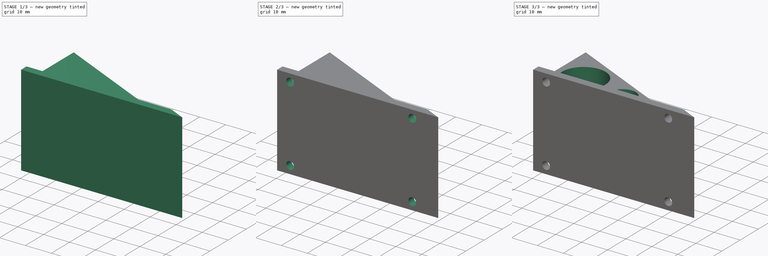
[diagram: build sequence overview — one tinted view per stage of 3, left to right]
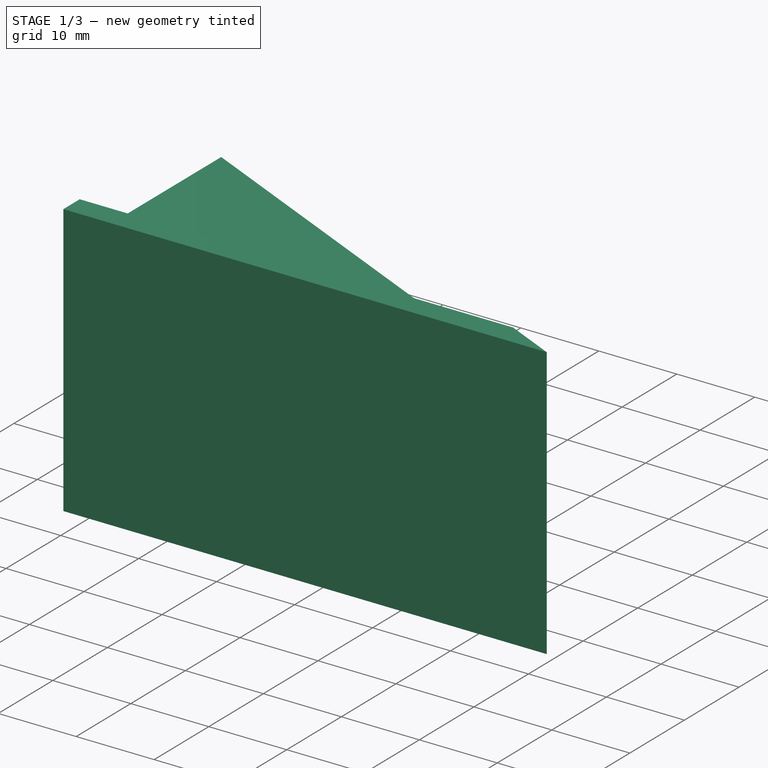
[diagram: stage 1 of 3 — iso view after this stage's code; geometry added in this stage tinted green]
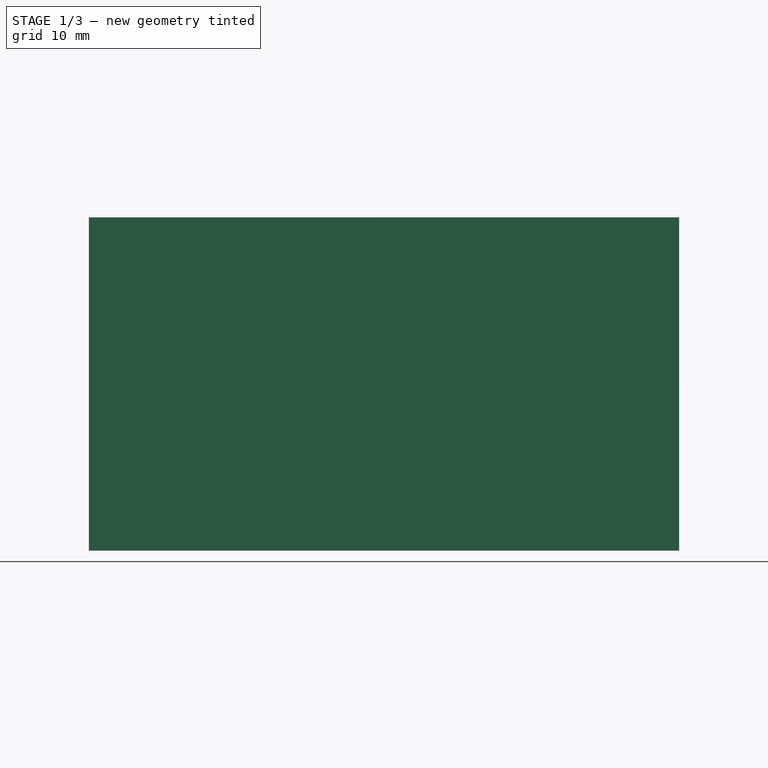
[diagram: stage 1 of 3 — front view after this stage's code; geometry added in this stage tinted green]
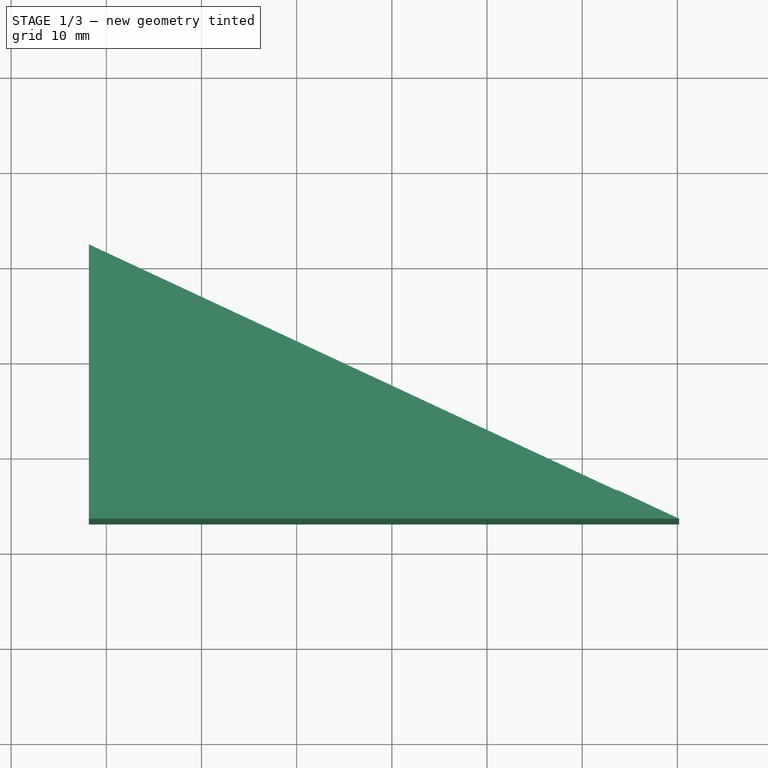
[diagram: stage 1 of 3 — top view after this stage's code; geometry added in this stage tinted green]
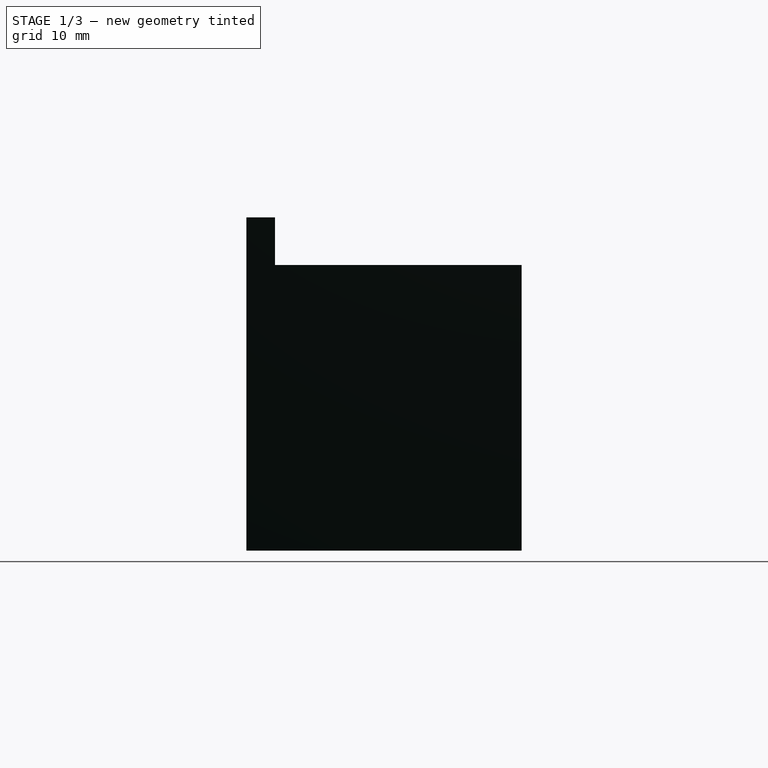
[diagram: stage 1 of 3 — right view after this stage's code; geometry added in this stage tinted green]
FCSTD DOCUMENT  (FreeCAD 0.16R6705 (Git))
Label: pippo2
License: All rights reserved
LicenseURL: http://it.wikipedia.org/wiki/<copyright redacted>
objects: Sketcher::SketchObject×5, PartDesign::Pocket×4, PartDesign::Pad×1, PartDesign::Fillet×1
note: 16 computed .brp shape members not serialized (recipe doc carries the construction recipe); baked Part::Feature solids carry a one-line shape summary decoded from their .brp

FEATURE [Sketcher::SketchObject] Sketch
  sketch-geometry (3):
    g0: LineSegment StartX=-1.82481 StartY=2.01752 StartZ=0 EndX=-1.82481 EndY=-26.8936 EndZ=0
    g1: LineSegment StartX=-1.82481 StartY=-26.8936 StartZ=0 EndX=60.1752 EndY=-26.8936 EndZ=0
    g2: LineSegment StartX=60.1752 StartY=-26.8936 StartZ=0 EndX=-1.82481 EndY=2.01752 EndZ=0
  constraints (7):
    c: Coincident(g0,g1)
    c: Coincident(g1,g2)
    c: Coincident(g2,g0)
    c: Perpendicular(g1,g0)
    c: Parallel(g1,g-1)
    c: Angle(g2,g1) = 0.436332
    c: Distance(g1) = 62
FEATURE [PartDesign::Pad] Pad
  Length = 35
  Length2 = 100
  Midplane = true
  Sketch = -> Sketch
  Type = 0
FEATURE [Sketcher::SketchObject] Sketch001
  ExternalGeometry = -> [Pad]
  Placement = pos=(0,0,17.5) rot=(0,0,1;0rad)
  Support = -> Pad [Face5]
  sketch-geometry (3):
    g0: LineSegment StartX=-1.82481 StartY=2.01752 StartZ=0 EndX=-1.82481 EndY=-23.8936 EndZ=0
    g1: LineSegment StartX=-1.82481 StartY=-23.8936 StartZ=0 EndX=53.7417 EndY=-23.8936 EndZ=0
    g2: LineSegment StartX=53.7417 StartY=-23.8936 StartZ=0 EndX=-1.82481 EndY=2.01752 EndZ=0
  constraints (9):
    c: Coincident(g0,g1)
    c: Coincident(g1,g2)
    c: Coincident(g2,g0)
    c: Parallel(g1,g-3)
    c: Parallel(g0,g-4)
    c: PointOnObject(g1,g-5)
    c: PointOnObject(g0,g-4)
    c: DistanceY(g-4,g0) = 3
    c: PointOnObject(g0,g-5)
FEATURE [PartDesign::Pocket] Pocket
  Length = 5
  Sketch = -> Sketch001
  Type = 0
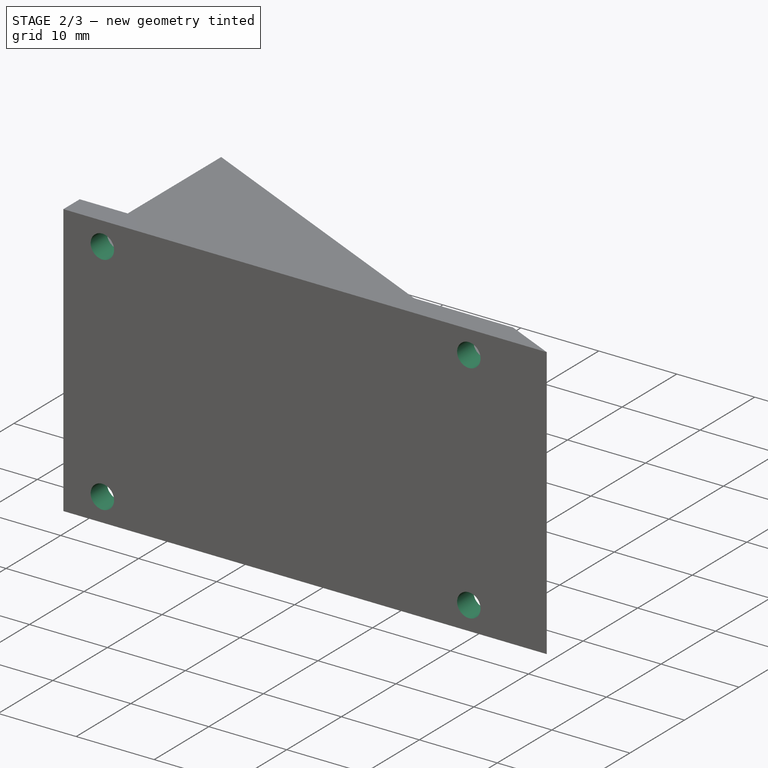
[diagram: stage 2 of 3 — iso view after this stage's code; geometry added in this stage tinted green]
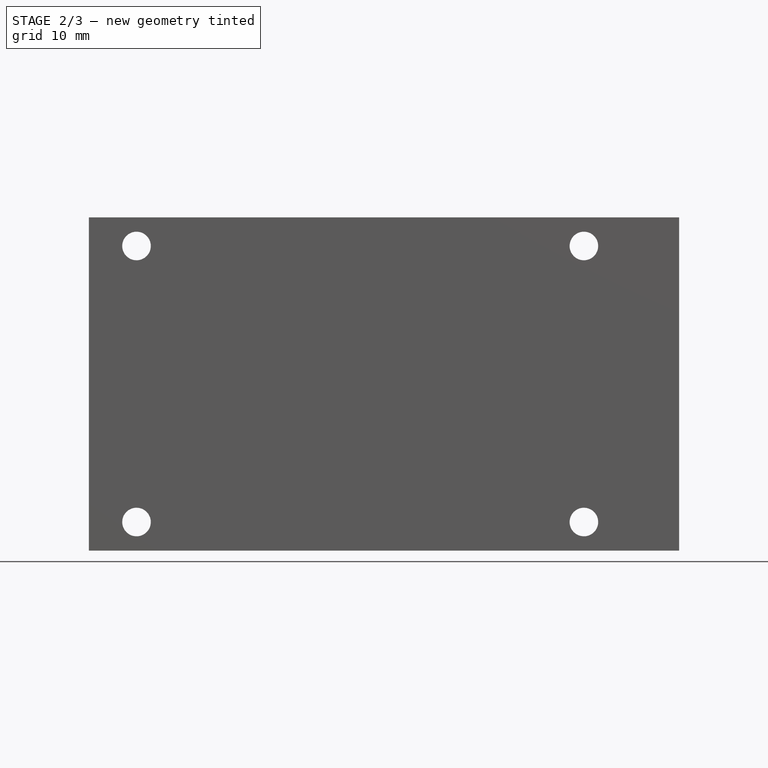
[diagram: stage 2 of 3 — front view after this stage's code; geometry added in this stage tinted green]
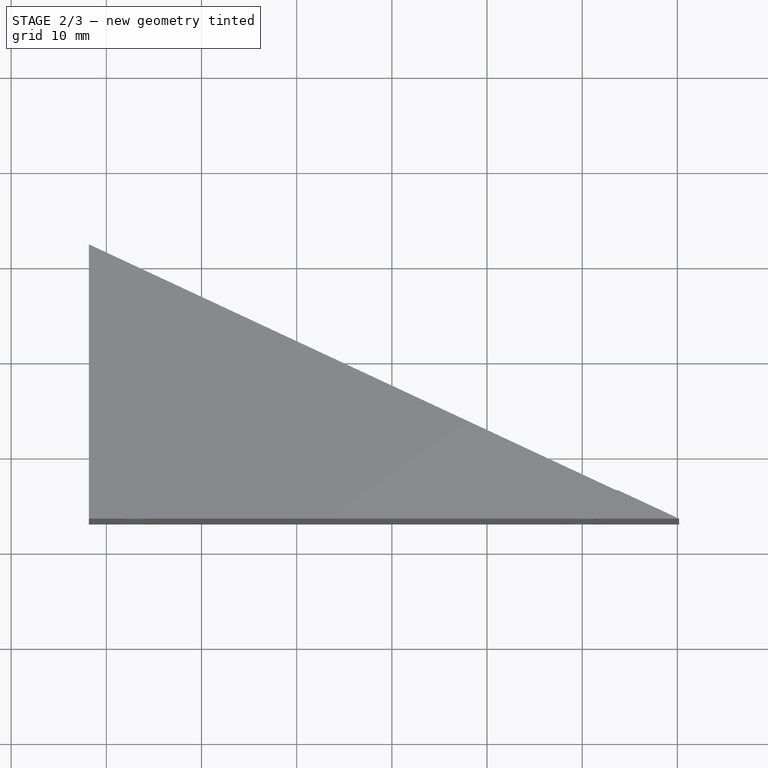
[diagram: stage 2 of 3 — top view after this stage's code; geometry added in this stage tinted green]
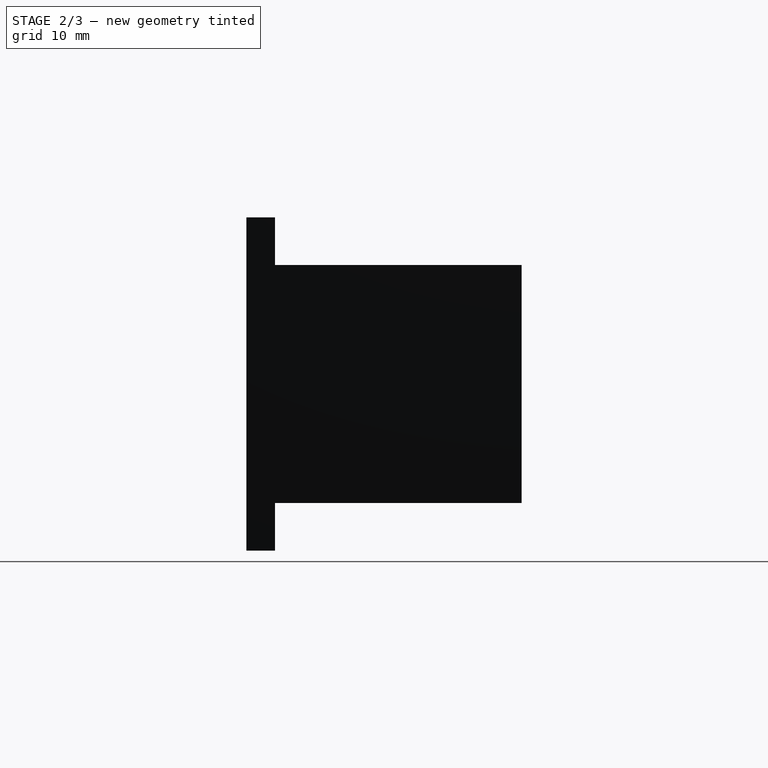
[diagram: stage 2 of 3 — right view after this stage's code; geometry added in this stage tinted green]
FEATURE [Sketcher::SketchObject] Sketch002
  ExternalGeometry = -> [Pocket]
  Placement = pos=(0,0,-17.5) rot=(1,0,0;3.14159rad)
  Support = -> Pocket [Face2]
  sketch-geometry (3):
    g0: LineSegment StartX=53.7417 StartY=23.8936 StartZ=0 EndX=-1.82481 EndY=23.8936 EndZ=0
    g1: LineSegment StartX=53.7417 StartY=23.8936 StartZ=0 EndX=-1.82481 EndY=-2.01752 EndZ=0
    g2: LineSegment StartX=-1.82481 StartY=23.8936 StartZ=0 EndX=-1.82481 EndY=-2.01752 EndZ=0
  constraints (6):
    c: Coincident(g2,g-5)
    c: Coincident(g1,g-4)
    c: Coincident(g-5,g0)
    c: Coincident(g-5,g1)
    c: Coincident(g2,g0)
    c: Coincident(g1,g2)
FEATURE [PartDesign::Pocket] Pocket001
  Length = 5
  Sketch = -> Sketch002
  Type = 0
FEATURE [Sketcher::SketchObject] Sketch003
  ExternalGeometry = -> [Pocket001]
  Placement = pos=(0,-23.8936,0) rot=(0,0.707107,0.707107;3.14159rad)
  Support = -> Pocket001 [Face5]
  sketch-geometry (8):
    g0: Circle CenterX=-50.1752 CenterY=14.5 CenterZ=0 NormalX=0 NormalY=0 NormalZ=1 Radius=1.5
    g1: Circle CenterX=-3.17519 CenterY=14.5 CenterZ=0 NormalX=0 NormalY=0 NormalZ=1 Radius=1.5
    g2: Circle CenterX=-50.1752 CenterY=-14.5 CenterZ=0 NormalX=0 NormalY=0 NormalZ=1 Radius=1.5
    g3: Circle CenterX=-3.17519 CenterY=-14.5 CenterZ=0 NormalX=0 NormalY=0 NormalZ=1 Radius=1.5
    g4: LineSegment [constr] StartX=-70.6322 StartY=14.5 StartZ=0 EndX=-8.17519 EndY=14.5 EndZ=0
    g5: LineSegment [constr] StartX=-8.17519 StartY=14.5 StartZ=0 EndX=-8.17519 EndY=-14.5 EndZ=0
    g6: LineSegment [constr] StartX=-8.17519 StartY=-14.5 StartZ=0 EndX=-70.6322 EndY=-14.5 EndZ=0
    g7: LineSegment [constr] StartX=-70.6322 StartY=-31 StartZ=0 EndX=-70.6322 EndY=31 EndZ=0
  constraints (16):
    c: Equal(g0,g1)
    c: Equal(g1,g3)
    c: Equal(g3,g2)
    c: DistanceX(g1,g-3) = 5
    c: DistanceX(g3,g-4) = 5
    c: Coincident(g4,g5)
    c: Coincident(g5,g6)
    c: Horizontal(g4)
    c: Horizontal(g6)
    c: DistanceY(g1,g-3) = 3
    c: DistanceY(g-4,g3) = 3
    c: Radius(g0) = 1.5
    c: DistanceX(g0,g-3) = 52
    c: DistanceX(g2,g-4) = 52
    c: PointOnObject(g0,g4)
    c: PointOnObject(g2,g6)
FEATURE [PartDesign::Pocket] Pocket002
  Length = 5
  Sketch = -> Sketch003
  Type = 1
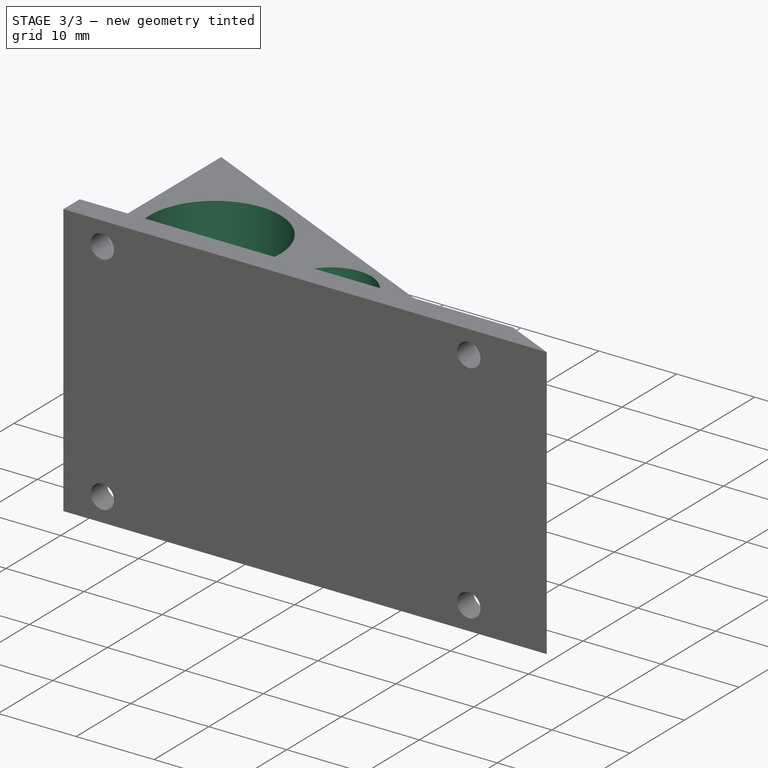
[diagram: stage 3 of 3 — iso view after this stage's code; geometry added in this stage tinted green]
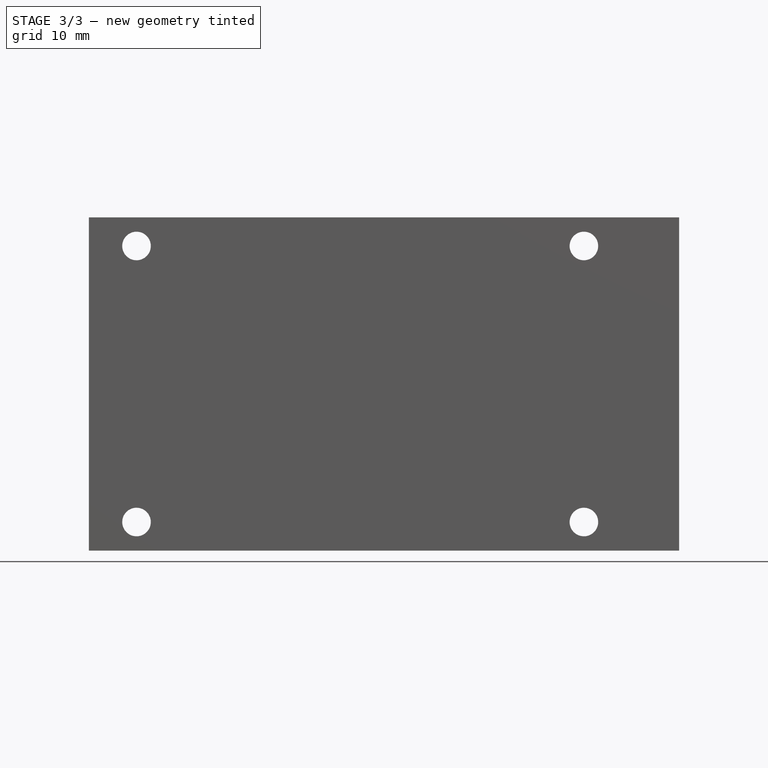
[diagram: stage 3 of 3 — front view after this stage's code; geometry added in this stage tinted green]
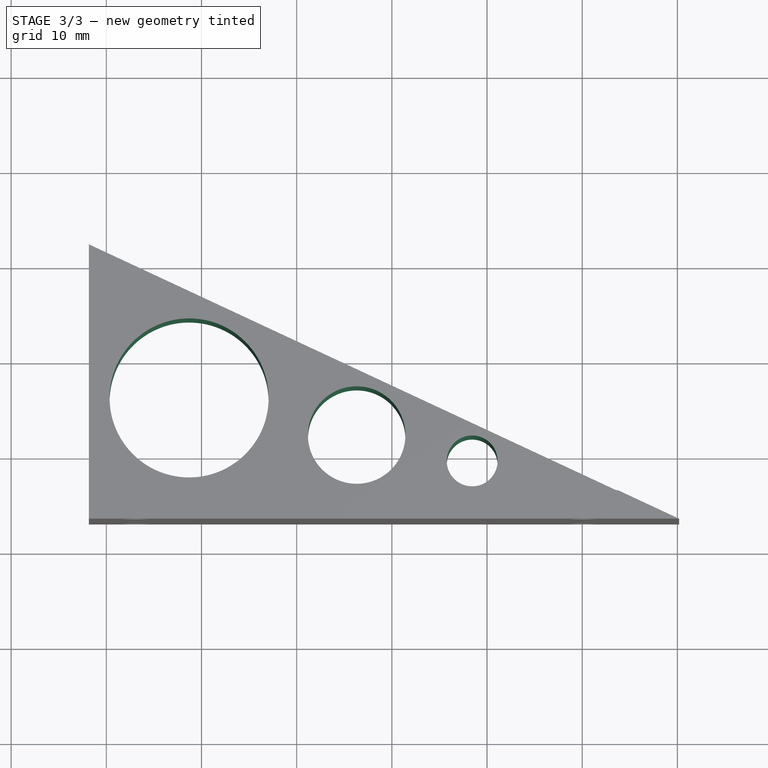
[diagram: stage 3 of 3 — top view after this stage's code; geometry added in this stage tinted green]
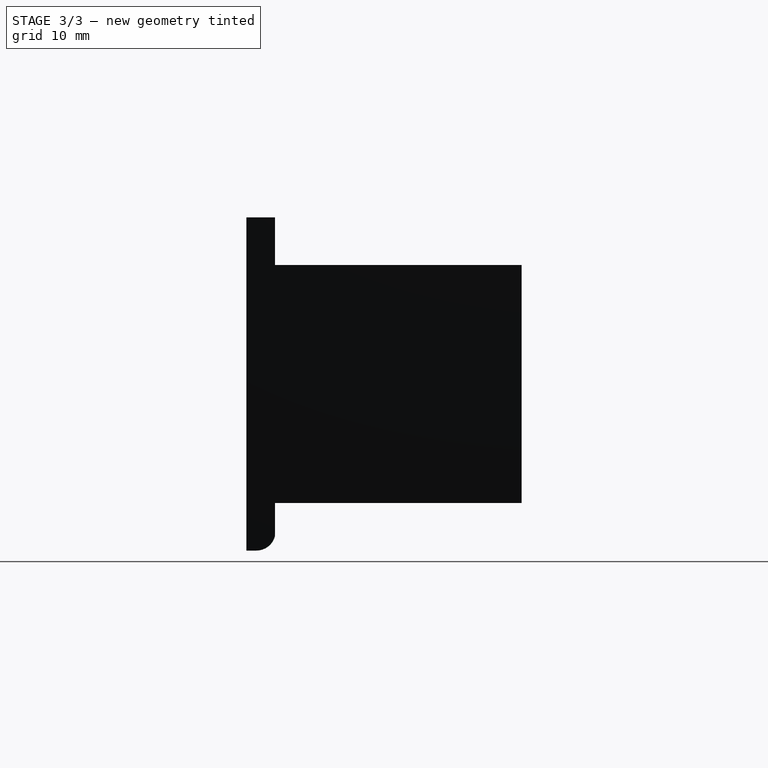
[diagram: stage 3 of 3 — right view after this stage's code; geometry added in this stage tinted green]
FEATURE [Sketcher::SketchObject] Sketch005
  Placement = pos=(0,0,12.5) rot=(0,0,1;0rad)
  Support = -> Pocket002 [Face6]
  sketch-geometry (3):
    g0: Circle CenterX=8.70062 CenterY=-14.1186 CenterZ=0 NormalX=0 NormalY=0 NormalZ=1 Radius=8.35438
    g1: Circle CenterX=26.3032 CenterY=-18.0207 CenterZ=0 NormalX=0 NormalY=0 NormalZ=1 Radius=5.12041
    g2: Circle CenterX=38.4386 CenterY=-20.7376 CenterZ=0 NormalX=0 NormalY=0 NormalZ=1 Radius=2.67023
FEATURE [PartDesign::Pocket] Pocket004
  Length = 5
  Sketch = -> Sketch005
  Type = 1
FEATURE [PartDesign::Fillet] Fillet
  Base = -> Pocket004 [Edge11]
  Radius = 2
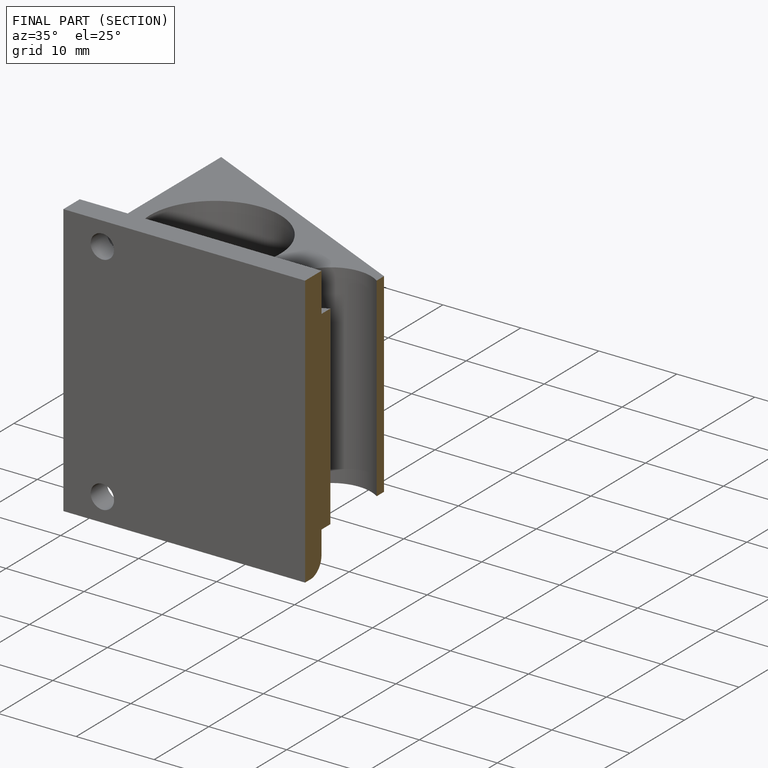
[diagram: finished part — half-section view (interior)]
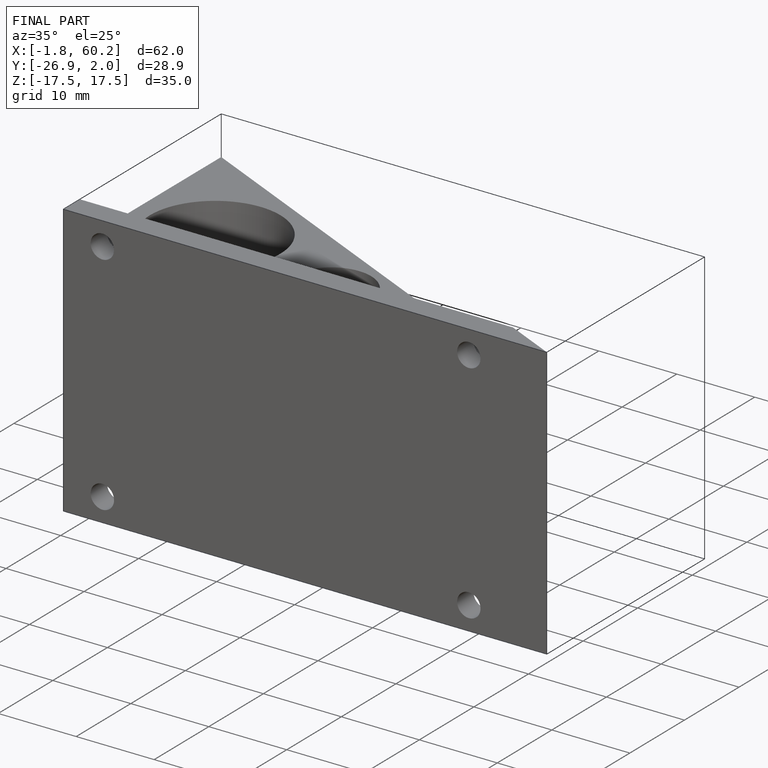
[diagram: finished part — iso view with bounding-box wireframe]
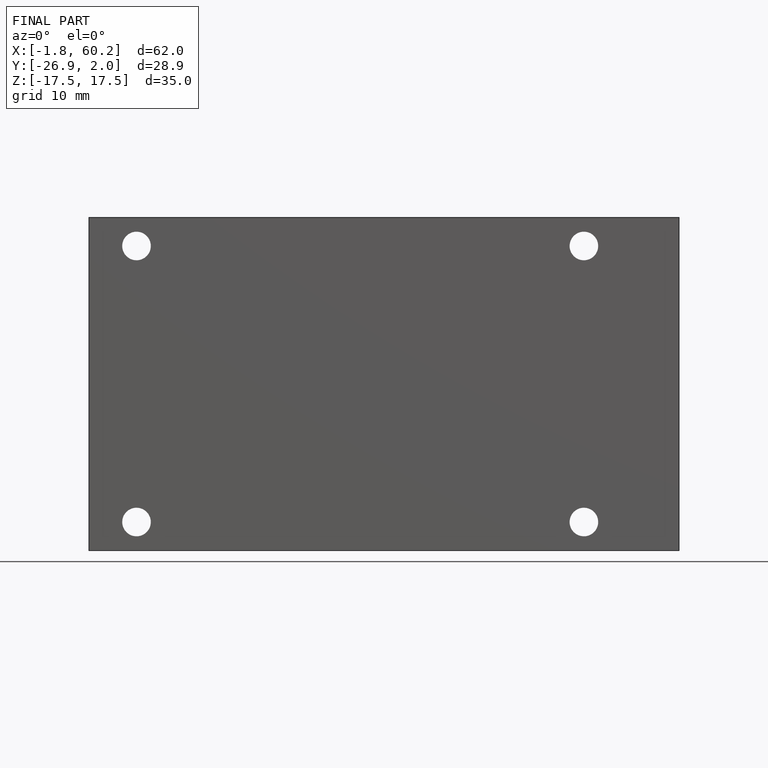
[diagram: finished part — front view with bounding-box wireframe]
